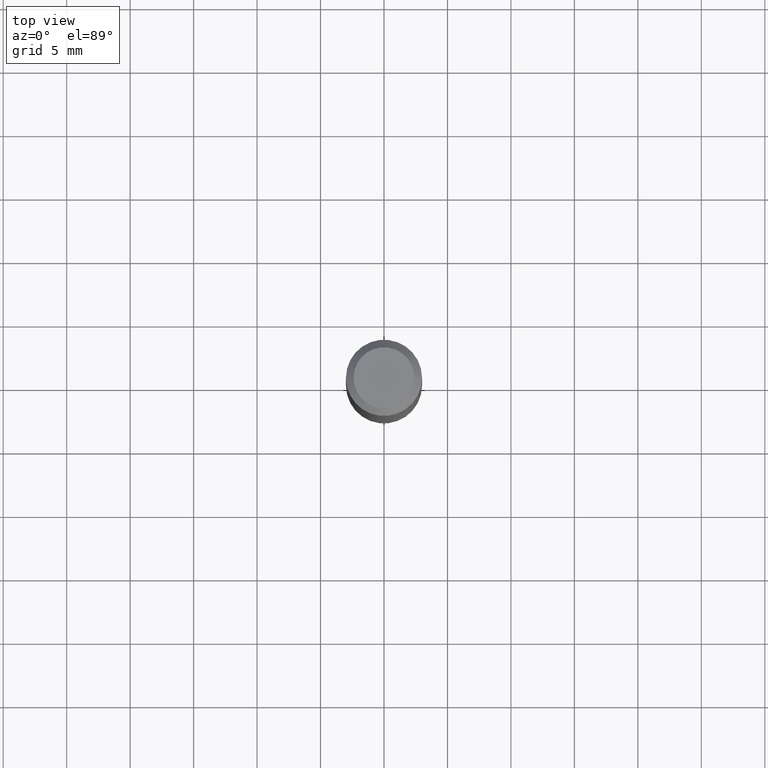
[diagram: clean part render]
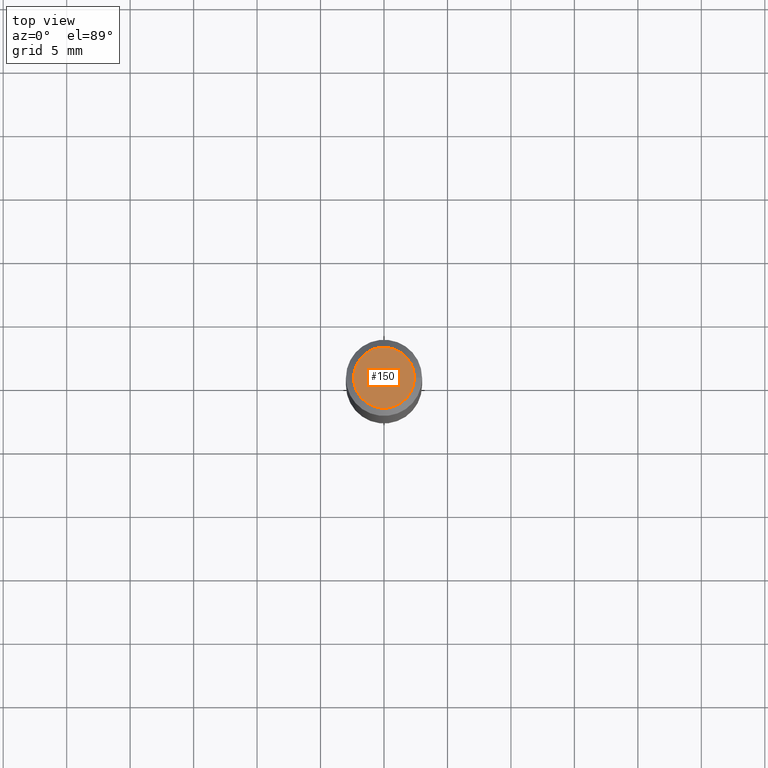
[diagram: same view with one face highlighted and labeled with its STEP entity id]
A machine part, top view. The second image highlights one B-rep face of the part: STEP entity #150.
In plain terms, the highlighted planar face has unit normal (0, 0, 1).
Its self-contained STEP definition (entity closure, byte-faithful):
#27 = CARTESIAN_POINT ( 'NONE',  ( 2.399999999999998135, 0.0000000000000000000, -1.675911042644702748E-14 ) ) ;
#77 = DIRECTION ( 'NONE',  ( 1.000000000000000000, 0.0000000000000000000, -6.982962677686266711E-15 ) ) ;
#121 = AXIS2_PLACEMENT_3D ( 'NONE', #265, #268, #77 ) ;
#138 = CARTESIAN_POINT ( 'NONE',  ( -7.525997073249809467E-31, 0.0000000000000000000, -1.077765616204535070E-16 ) ) ;
#150 = ADVANCED_FACE ( 'NONE', ( #168 ), #172, .T. ) ;
#151 = VERTEX_POINT ( 'NONE', #27 ) ;
#166 = CIRCLE ( 'NONE', #121, 2.399999999999998135 ) ;
#168 = FACE_OUTER_BOUND ( 'NONE', #277, .T. ) ;
#172 = PLANE ( 'NONE',  #227 ) ;
#197 = EDGE_CURVE ( 'NONE', #151, #151, #166, .T. ) ;
#198 = ORIENTED_EDGE ( 'NONE', *, *, #197, .T. ) ;
#218 = DIRECTION ( 'NONE',  ( 6.982962677686266711E-15, 0.0000000000000000000, 1.000000000000000000 ) ) ;
#227 = AXIS2_PLACEMENT_3D ( 'NONE', #138, #218, #278 ) ;
#265 = CARTESIAN_POINT ( 'NONE',  ( 0.0000000000000000000, 0.0000000000000000000, 0.0000000000000000000 ) ) ;
#268 = DIRECTION ( 'NONE',  ( 6.982962677686266711E-15, 0.0000000000000000000, 1.000000000000000000 ) ) ;
#277 = EDGE_LOOP ( 'NONE', ( #198 ) ) ;
#278 = DIRECTION ( 'NONE',  ( 1.000000000000000000, 0.0000000000000000000, -6.982962677686266711E-15 ) ) ;